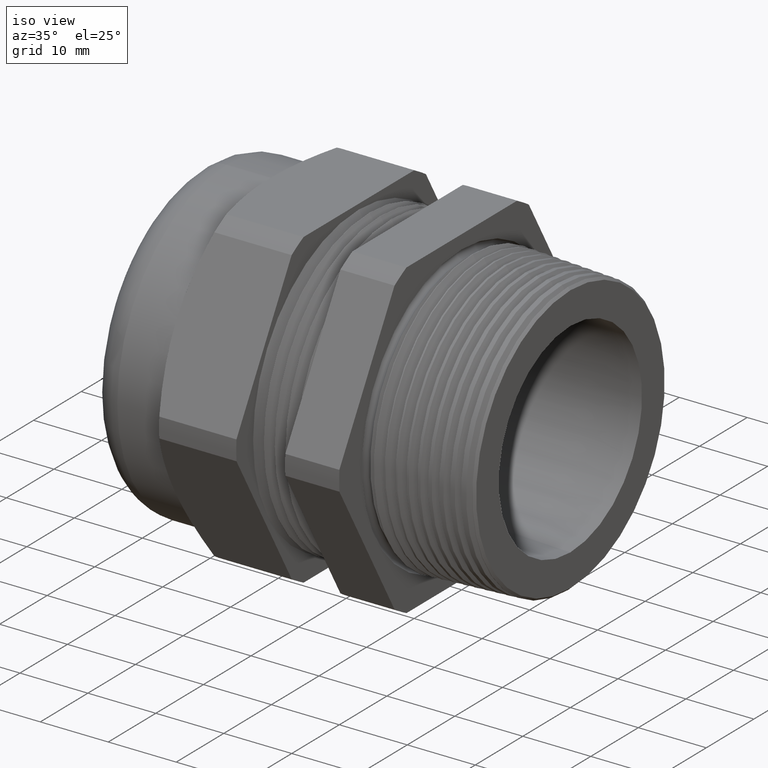
[diagram: clean part render]
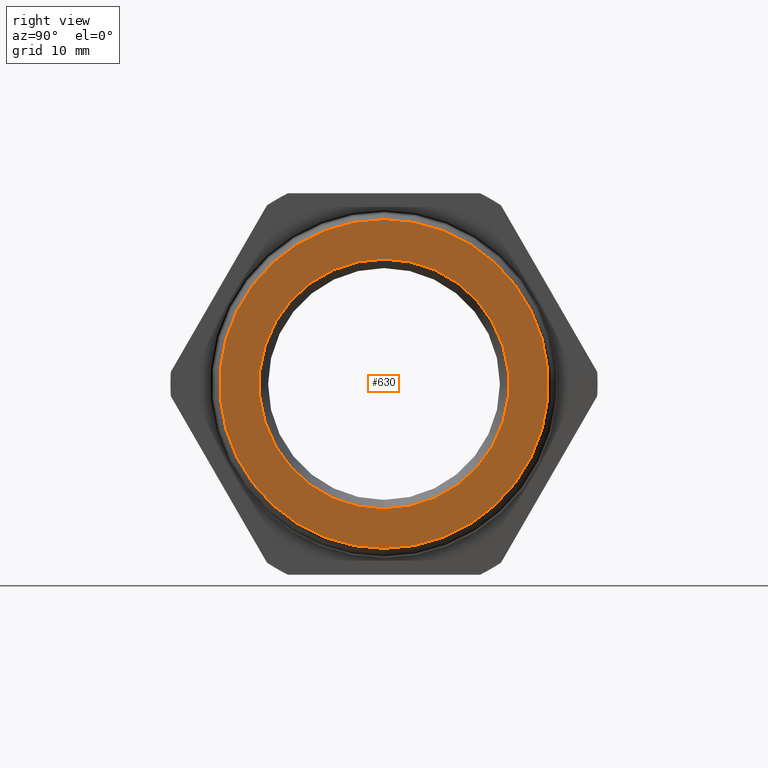
[diagram: tour spotlight — one face highlighted and labeled with its STEP entity id]
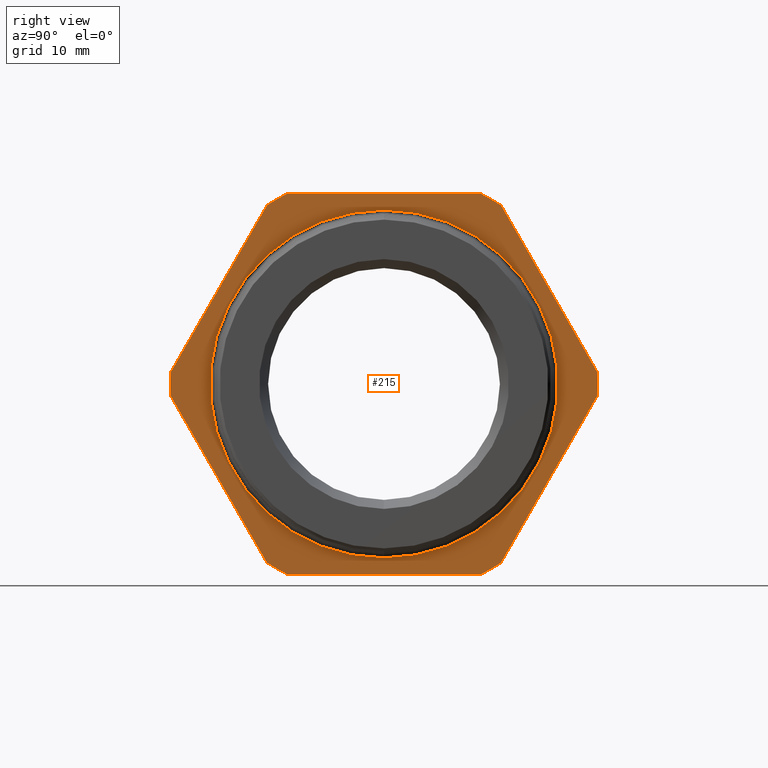
[diagram: tour spotlight — one face highlighted and labeled with its STEP entity id]
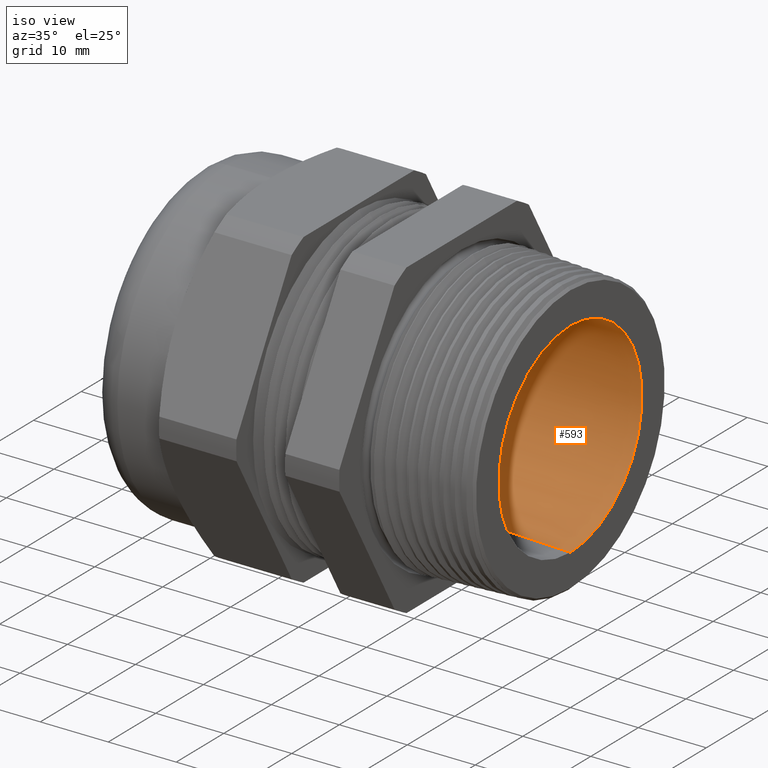
[diagram: tour spotlight — one face highlighted and labeled with its STEP entity id]
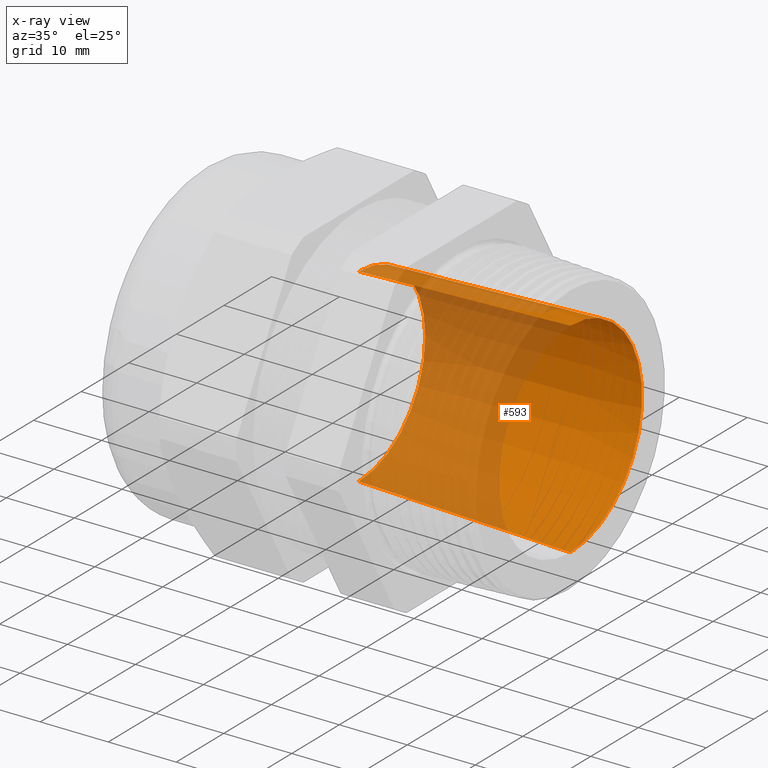
[diagram: x-ray of the same camera — body ghosted, this tour face saturated]
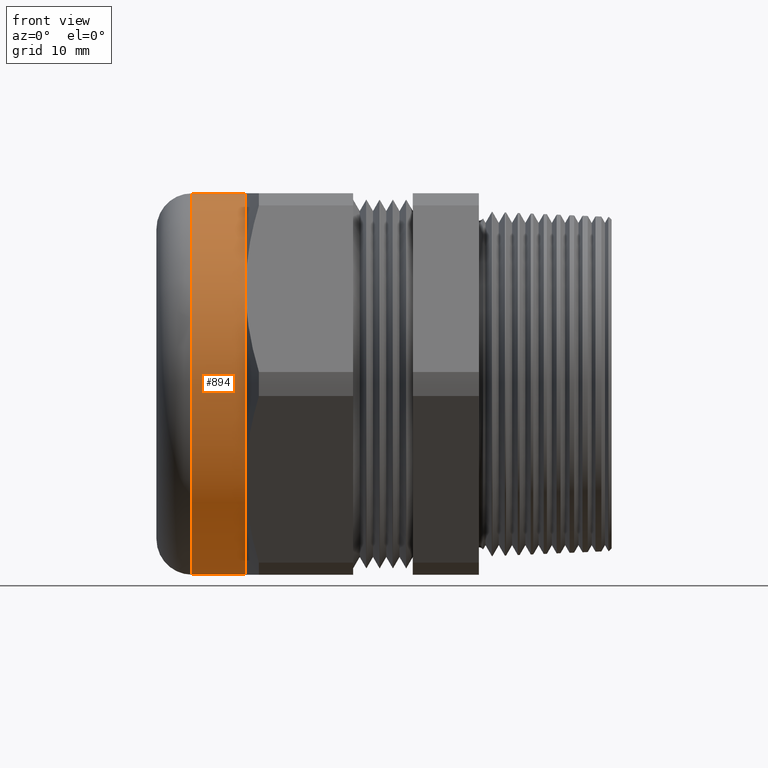
[diagram: tour spotlight — one face highlighted and labeled with its STEP entity id]
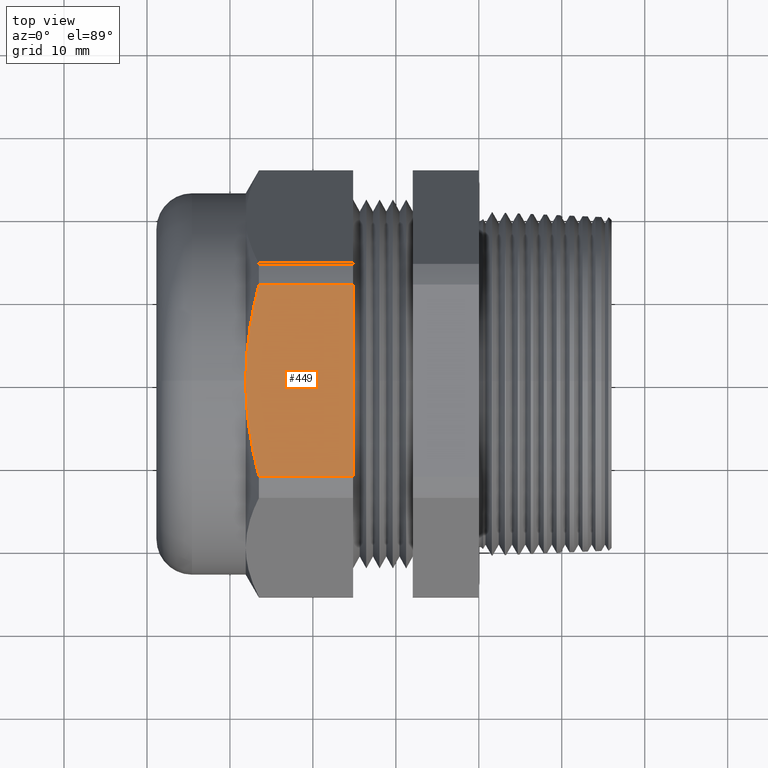
[diagram: tour spotlight — one face highlighted and labeled with its STEP entity id]
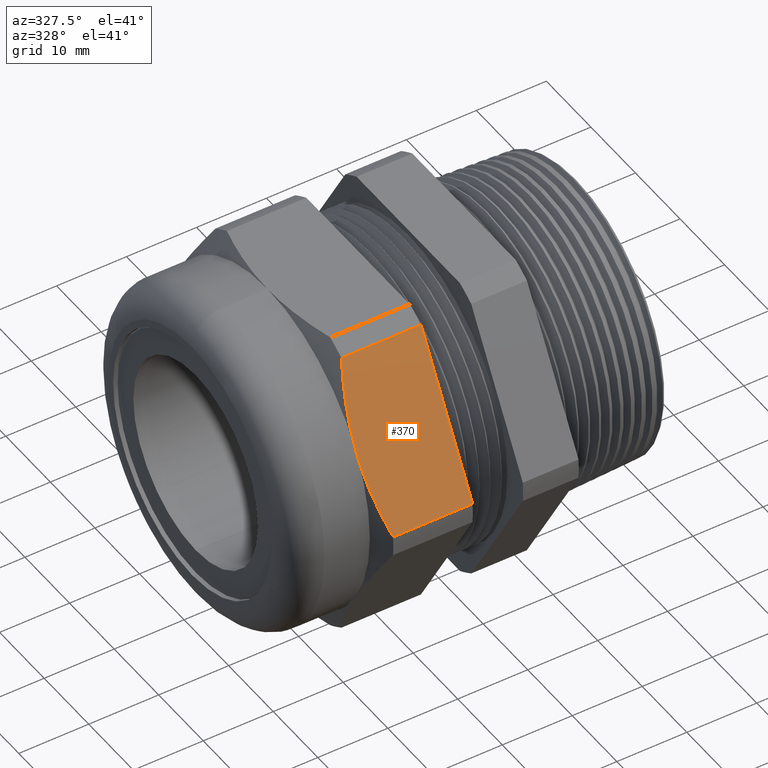
[diagram: tour spotlight — one face highlighted and labeled with its STEP entity id]
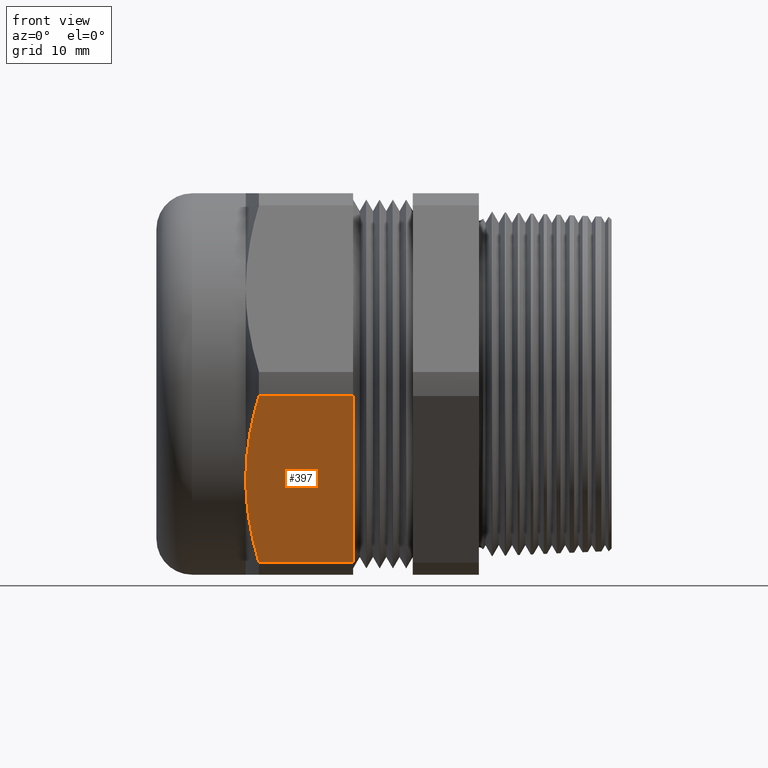
[diagram: tour spotlight — one face highlighted and labeled with its STEP entity id]
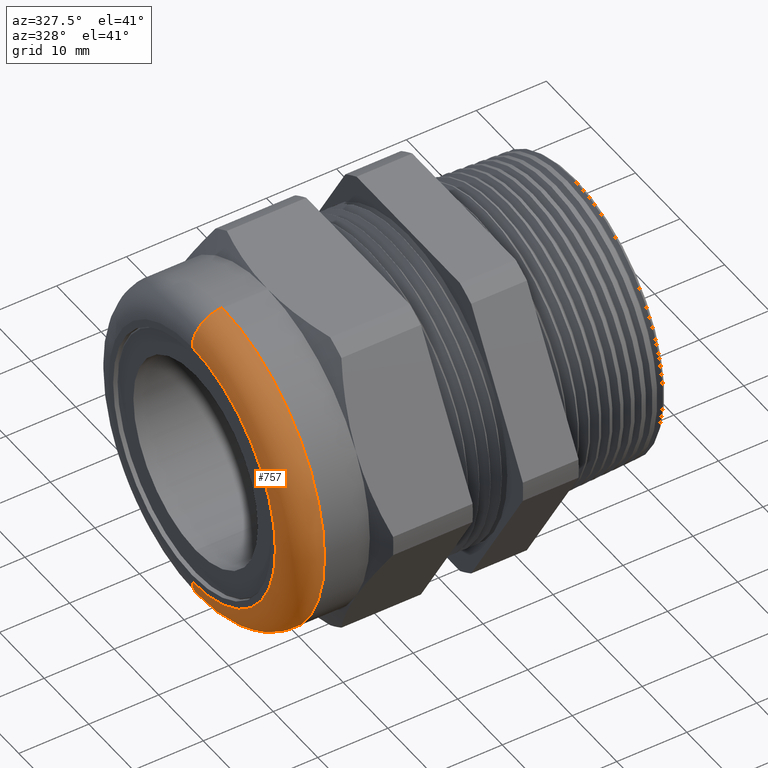
[diagram: tour spotlight — one face highlighted and labeled with its STEP entity id]
A machine part: a face-by-face anatomy tour. The part has 150 B-rep faces; the first image is the clean iso view, then the 8 largest visible faces are spotlighted one at a time (largest first), each with its STEP entity span.

Face 1 — right view, entity #630. In plain terms, the highlighted planar face has unit normal (-1, 0, 0).
Definition (entity closure, byte-faithful):
#37 = VERTEX_POINT ( 'NONE', #1516 ) ;
#39 = EDGE_CURVE ( 'NONE', #40, #37, #1515, .T. ) ;
#40 = VERTEX_POINT ( 'NONE', #1467 ) ;
#584 = EDGE_LOOP ( 'NONE', ( #590, #625 ) ) ;
#585 = EDGE_CURVE ( 'NONE', #37, #40, #2607, .T. ) ;
#587 = ORIENTED_EDGE ( 'NONE', *, *, #1354, .T. ) ;
#590 = ORIENTED_EDGE ( 'NONE', *, *, #39, .T. ) ;
#597 = EDGE_LOOP ( 'NONE', ( #619, #587 ) ) ;
#619 = ORIENTED_EDGE ( 'NONE', *, *, #641, .T. ) ;
#625 = ORIENTED_EDGE ( 'NONE', *, *, #585, .T. ) ;
#630 = ADVANCED_FACE ( 'NONE', ( #2554, #2553 ), #2552, .F. ) ;
#641 = EDGE_CURVE ( 'NONE', #1356, #1355, #2589, .T. ) ;
#1354 = EDGE_CURVE ( 'NONE', #1355, #1356, #4033, .T. ) ;
#1355 = VERTEX_POINT ( 'NONE', #4028 ) ;
#1356 = VERTEX_POINT ( 'NONE', #4027 ) ;
#1467 = CARTESIAN_POINT ( 'NONE',  ( 0.6299999999999997800, 0.0000000000000000000, -0.5928215935892565700 ) ) ;
#1511 = DIRECTION ( 'NONE',  ( 0.0000000000000000000, 0.0000000000000000000, 1.000000000000000000 ) ) ;
#1512 = DIRECTION ( 'NONE',  ( -1.000000000000000000, 0.0000000000000000000, 0.0000000000000000000 ) ) ;
#1513 = CARTESIAN_POINT ( 'NONE',  ( 0.6299999999999997800, 0.0000000000000000000, 0.0000000000000000000 ) ) ;
#1514 = AXIS2_PLACEMENT_3D ( 'NONE', #1513, #1512, #1511 ) ;
#1515 = CIRCLE ( 'NONE', #1514, 0.5928215935892565700 ) ;
#1516 = CARTESIAN_POINT ( 'NONE',  ( 0.6299999999999997800, 7.259970670545161900E-017, 0.5928215935892565700 ) ) ;
#2552 = PLANE ( 'NONE',  #2594 ) ;
#2553 = FACE_BOUND ( 'NONE', #584, .T. ) ;
#2554 = FACE_OUTER_BOUND ( 'NONE', #597, .T. ) ;
#2582 = CARTESIAN_POINT ( 'NONE',  ( 0.6299999999999997800, 0.0000000000000000000, 0.0000000000000000000 ) ) ;
#2583 = AXIS2_PLACEMENT_3D ( 'NONE', #2582, #2654, #2653 ) ;
#2589 = CIRCLE ( 'NONE', #2583, 0.7799936059676371200 ) ;
#2591 = DIRECTION ( 'NONE',  ( 0.0000000000000000000, 0.0000000000000000000, 1.000000000000000000 ) ) ;
#2592 = DIRECTION ( 'NONE',  ( -1.000000000000000000, 0.0000000000000000000, 0.0000000000000000000 ) ) ;
#2593 = CARTESIAN_POINT ( 'NONE',  ( 0.6299999999999997800, 0.7924936059676371800, 0.0000000000000000000 ) ) ;
#2594 = AXIS2_PLACEMENT_3D ( 'NONE', #2593, #2592, #2591 ) ;
#2604 = CARTESIAN_POINT ( 'NONE',  ( 0.6299999999999997800, 0.0000000000000000000, 0.0000000000000000000 ) ) ;
#2606 = AXIS2_PLACEMENT_3D ( 'NONE', #2604, #2632, #2631 ) ;
#2607 = CIRCLE ( 'NONE', #2606, 0.5928215935892565700 ) ;
#2631 = DIRECTION ( 'NONE',  ( 0.0000000000000000000, 0.0000000000000000000, 1.000000000000000000 ) ) ;
#2632 = DIRECTION ( 'NONE',  ( -1.000000000000000000, 0.0000000000000000000, 0.0000000000000000000 ) ) ;
#2653 = DIRECTION ( 'NONE',  ( 0.0000000000000000000, 0.0000000000000000000, 1.000000000000000000 ) ) ;
#2654 = DIRECTION ( 'NONE',  ( 1.000000000000000000, 0.0000000000000000000, 0.0000000000000000000 ) ) ;
#4027 = CARTESIAN_POINT ( 'NONE',  ( 0.6299999999999997800, 0.0000000000000000000, 0.7799936059676371200 ) ) ;
#4028 = CARTESIAN_POINT ( 'NONE',  ( 0.6299999999999997800, 9.632201549719941800E-017, -0.7799936059676371200 ) ) ;
#4029 = DIRECTION ( 'NONE',  ( 0.0000000000000000000, 0.0000000000000000000, 1.000000000000000000 ) ) ;
#4030 = DIRECTION ( 'NONE',  ( 1.000000000000000000, 0.0000000000000000000, 0.0000000000000000000 ) ) ;
#4031 = CARTESIAN_POINT ( 'NONE',  ( 0.6299999999999997800, 0.0000000000000000000, 0.0000000000000000000 ) ) ;
#4032 = AXIS2_PLACEMENT_3D ( 'NONE', #4031, #4030, #4029 ) ;
#4033 = CIRCLE ( 'NONE', #4032, 0.7799936059676371200 ) ;

Face 2 — right view, entity #215. In plain terms, the highlighted planar face has unit normal (-1, 0, 0).
Definition (entity closure, byte-faithful):
#96 = ORIENTED_EDGE ( 'NONE', *, *, #97, .F. ) ;
#97 = EDGE_CURVE ( 'NONE', #98, #222, #1663, .T. ) ;
#98 = VERTEX_POINT ( 'NONE', #1621 ) ;
#100 = EDGE_LOOP ( 'NONE', ( #147, #219, #245, #283, #232, #255, #251, #152, #216, #96, #228, #270 ) ) ;
#147 = ORIENTED_EDGE ( 'NONE', *, *, #221, .T. ) ;
#148 = VERTEX_POINT ( 'NONE', #1637 ) ;
#150 = EDGE_CURVE ( 'NONE', #250, #151, #1636, .T. ) ;
#151 = VERTEX_POINT ( 'NONE', #1632 ) ;
#152 = ORIENTED_EDGE ( 'NONE', *, *, #153, .F. ) ;
#153 = EDGE_CURVE ( 'NONE', #154, #151, #1631, .T. ) ;
#154 = VERTEX_POINT ( 'NONE', #1626 ) ;
#215 = ADVANCED_FACE ( 'NONE', ( #1828, #1827 ), #1826, .F. ) ;
#216 = ORIENTED_EDGE ( 'NONE', *, *, #217, .T. ) ;
#217 = EDGE_CURVE ( 'NONE', #154, #222, #1821, .T. ) ;
#218 = VERTEX_POINT ( 'NONE', #1817 ) ;
#219 = ORIENTED_EDGE ( 'NONE', *, *, #220, .F. ) ;
#220 = EDGE_CURVE ( 'NONE', #244, #218, #1816, .T. ) ;
#221 = EDGE_CURVE ( 'NONE', #148, #218, #1811, .T. ) ;
#222 = VERTEX_POINT ( 'NONE', #1807 ) ;
#228 = ORIENTED_EDGE ( 'NONE', *, *, #259, .T. ) ;
#232 = ORIENTED_EDGE ( 'NONE', *, *, #233, .T. ) ;
#233 = EDGE_CURVE ( 'NONE', #285, #234, #1911, .T. ) ;
#234 = VERTEX_POINT ( 'NONE', #1907 ) ;
#244 = VERTEX_POINT ( 'NONE', #1896 ) ;
#245 = ORIENTED_EDGE ( 'NONE', *, *, #246, .T. ) ;
#246 = EDGE_CURVE ( 'NONE', #244, #247, #1895, .T. ) ;
#247 = VERTEX_POINT ( 'NONE', #1891 ) ;
#250 = VERTEX_POINT ( 'NONE', #1885 ) ;
#251 = ORIENTED_EDGE ( 'NONE', *, *, #150, .T. ) ;
#255 = ORIENTED_EDGE ( 'NONE', *, *, #256, .F. ) ;
#256 = EDGE_CURVE ( 'NONE', #250, #234, #1877, .T. ) ;
#259 = EDGE_CURVE ( 'NONE', #98, #290, #1868, .T. ) ;
#270 = ORIENTED_EDGE ( 'NONE', *, *, #271, .F. ) ;
#271 = EDGE_CURVE ( 'NONE', #148, #290, #1997, .T. ) ;
#277 = ORIENTED_EDGE ( 'NONE', *, *, #1038, .F. ) ;
#279 = ORIENTED_EDGE ( 'NONE', *, *, #280, .F. ) ;
#280 = EDGE_CURVE ( 'NONE', #1039, #1036, #2040, .T. ) ;
#283 = ORIENTED_EDGE ( 'NONE', *, *, #284, .F. ) ;
#284 = EDGE_CURVE ( 'NONE', #285, #247, #2031, .T. ) ;
#285 = VERTEX_POINT ( 'NONE', #2026 ) ;
#290 = VERTEX_POINT ( 'NONE', #1957 ) ;
#297 = EDGE_LOOP ( 'NONE', ( #279, #277 ) ) ;
#1036 = VERTEX_POINT ( 'NONE', #2860 ) ;
#1038 = EDGE_CURVE ( 'NONE', #1036, #1039, #2859, .T. ) ;
#1039 = VERTEX_POINT ( 'NONE', #2854 ) ;
#1621 = CARTESIAN_POINT ( 'NONE',  ( 0.0000000000000000000, -0.5555206745710920000, 0.8478099669879323200 ) ) ;
#1622 = DIRECTION ( 'NONE',  ( 0.0000000000000000000, 0.0000000000000000000, 1.000000000000000000 ) ) ;
#1623 = DIRECTION ( 'NONE',  ( -1.000000000000000000, 0.0000000000000000000, 0.0000000000000000000 ) ) ;
#1624 = CARTESIAN_POINT ( 'NONE',  ( 0.0000000000000000000, 0.0000000000000000000, 0.0000000000000000000 ) ) ;
#1625 = AXIS2_PLACEMENT_3D ( 'NONE', #1624, #1623, #1622 ) ;
#1626 = CARTESIAN_POINT ( 'NONE',  ( 0.0000000000000000000, 0.4564646317076493900, 0.9050000000000001400 ) ) ;
#1627 = DIRECTION ( 'NONE',  ( 0.0000000000000000000, 0.0000000000000000000, 1.000000000000000000 ) ) ;
#1628 = DIRECTION ( 'NONE',  ( -1.000000000000000000, 0.0000000000000000000, 0.0000000000000000000 ) ) ;
#1629 = CARTESIAN_POINT ( 'NONE',  ( 0.0000000000000000000, 0.0000000000000000000, 0.0000000000000000000 ) ) ;
#1630 = AXIS2_PLACEMENT_3D ( 'NONE', #1629, #1628, #1627 ) ;
#1631 = CIRCLE ( 'NONE', #1630, 1.013600000000000100 ) ;
#1632 = CARTESIAN_POINT ( 'NONE',  ( 0.0000000000000000000, 0.5555206745710923300, 0.8478099669879322100 ) ) ;
#1633 = DIRECTION ( 'NONE',  ( 0.0000000000000000000, -0.4999999999999998900, 0.8660254037844386000 ) ) ;
#1634 = VECTOR ( 'NONE', #1633, 39.37007874015748900 ) ;
#1635 = CARTESIAN_POINT ( 'NONE',  ( 0.0000000000000000000, 1.011985306278741600, 0.05719003301206784100 ) ) ;
#1636 = LINE ( 'NONE', #1635, #1634 ) ;
#1637 = CARTESIAN_POINT ( 'NONE',  ( 0.0000000000000000000, -1.011985306278741800, -0.05719003301206832000 ) ) ;
#1663 = CIRCLE ( 'NONE', #1625, 1.013600000000000100 ) ;
#1807 = CARTESIAN_POINT ( 'NONE',  ( 0.0000000000000000000, -0.4564646317076495000, 0.9050000000000000300 ) ) ;
#1808 = DIRECTION ( 'NONE',  ( 0.0000000000000000000, 0.4999999999999998300, -0.8660254037844386000 ) ) ;
#1809 = VECTOR ( 'NONE', #1808, 39.37007874015748900 ) ;
#1810 = CARTESIAN_POINT ( 'NONE',  ( 0.0000000000000000000, -1.011985306278741600, -0.05719003301206825000 ) ) ;
#1811 = LINE ( 'NONE', #1810, #1809 ) ;
#1812 = DIRECTION ( 'NONE',  ( 0.0000000000000000000, 0.0000000000000000000, 1.000000000000000000 ) ) ;
#1813 = DIRECTION ( 'NONE',  ( -1.000000000000000000, 0.0000000000000000000, 0.0000000000000000000 ) ) ;
#1814 = CARTESIAN_POINT ( 'NONE',  ( 0.0000000000000000000, 0.0000000000000000000, 0.0000000000000000000 ) ) ;
#1815 = AXIS2_PLACEMENT_3D ( 'NONE', #1814, #1813, #1812 ) ;
#1816 = CIRCLE ( 'NONE', #1815, 1.013600000000000100 ) ;
#1817 = CARTESIAN_POINT ( 'NONE',  ( 0.0000000000000000000, -0.5555206745710928900, -0.8478099669879317600 ) ) ;
#1818 = DIRECTION ( 'NONE',  ( 0.0000000000000000000, -1.000000000000000000, 0.0000000000000000000 ) ) ;
#1819 = VECTOR ( 'NONE', #1818, 39.37007874015748100 ) ;
#1820 = CARTESIAN_POINT ( 'NONE',  ( 0.0000000000000000000, 0.4564646317076495000, 0.9050000000000000300 ) ) ;
#1821 = LINE ( 'NONE', #1820, #1819 ) ;
#1822 = DIRECTION ( 'NONE',  ( 0.0000000000000000000, 0.0000000000000000000, 1.000000000000000000 ) ) ;
#1823 = DIRECTION ( 'NONE',  ( -1.000000000000000000, 0.0000000000000000000, 0.0000000000000000000 ) ) ;
#1824 = CARTESIAN_POINT ( 'NONE',  ( 0.0000000000000000000, 1.013600000000000100, 0.0000000000000000000 ) ) ;
#1825 = AXIS2_PLACEMENT_3D ( 'NONE', #1824, #1823, #1822 ) ;
#1826 = PLANE ( 'NONE',  #1825 ) ;
#1827 = FACE_BOUND ( 'NONE', #297, .T. ) ;
#1828 = FACE_OUTER_BOUND ( 'NONE', #100, .T. ) ;
#1865 = DIRECTION ( 'NONE',  ( 0.0000000000000000000, -0.4999999999999998900, -0.8660254037844386000 ) ) ;
#1866 = VECTOR ( 'NONE', #1865, 39.37007874015748900 ) ;
#1867 = CARTESIAN_POINT ( 'NONE',  ( 0.0000000000000000000, -0.5555206745710921100, 0.8478099669879322100 ) ) ;
#1868 = LINE ( 'NONE', #1867, #1866 ) ;
#1874 = DIRECTION ( 'NONE',  ( 0.0000000000000000000, 0.0000000000000000000, 1.000000000000000000 ) ) ;
#1875 = DIRECTION ( 'NONE',  ( -1.000000000000000000, 0.0000000000000000000, 0.0000000000000000000 ) ) ;
#1876 = AXIS2_PLACEMENT_3D ( 'NONE', #1882, #1875, #1874 ) ;
#1877 = CIRCLE ( 'NONE', #1876, 1.013600000000000100 ) ;
#1882 = CARTESIAN_POINT ( 'NONE',  ( 0.0000000000000000000, 0.0000000000000000000, 0.0000000000000000000 ) ) ;
#1885 = CARTESIAN_POINT ( 'NONE',  ( 0.0000000000000000000, 1.011985306278741600, 0.05719003301206775800 ) ) ;
#1891 = CARTESIAN_POINT ( 'NONE',  ( 0.0000000000000000000, 0.4564646317076495000, -0.9050000000000000300 ) ) ;
#1892 = DIRECTION ( 'NONE',  ( 0.0000000000000000000, 1.000000000000000000, 0.0000000000000000000 ) ) ;
#1893 = VECTOR ( 'NONE', #1892, 39.37007874015748100 ) ;
#1894 = CARTESIAN_POINT ( 'NONE',  ( 0.0000000000000000000, -0.4564646317076495000, -0.9050000000000000300 ) ) ;
#1895 = LINE ( 'NONE', #1894, #1893 ) ;
#1896 = CARTESIAN_POINT ( 'NONE',  ( 0.0000000000000000000, -0.4564646317076499500, -0.9049999999999998000 ) ) ;
#1907 = CARTESIAN_POINT ( 'NONE',  ( 0.0000000000000000000, 1.011985306278741600, -0.05719003301206784100 ) ) ;
#1908 = DIRECTION ( 'NONE',  ( 0.0000000000000000000, 0.4999999999999998900, 0.8660254037844386000 ) ) ;
#1909 = VECTOR ( 'NONE', #1908, 39.37007874015748900 ) ;
#1910 = CARTESIAN_POINT ( 'NONE',  ( 0.0000000000000000000, 0.5555206745710923300, -0.8478099669879322100 ) ) ;
#1911 = LINE ( 'NONE', #1910, #1909 ) ;
#1957 = CARTESIAN_POINT ( 'NONE',  ( 0.0000000000000000000, -1.011985306278742100, 0.05719003301206764700 ) ) ;
#1993 = DIRECTION ( 'NONE',  ( 0.0000000000000000000, 0.0000000000000000000, 1.000000000000000000 ) ) ;
#1994 = DIRECTION ( 'NONE',  ( -1.000000000000000000, 0.0000000000000000000, 0.0000000000000000000 ) ) ;
#1995 = CARTESIAN_POINT ( 'NONE',  ( 0.0000000000000000000, 0.0000000000000000000, 0.0000000000000000000 ) ) ;
#1996 = AXIS2_PLACEMENT_3D ( 'NONE', #1995, #1994, #1993 ) ;
#1997 = CIRCLE ( 'NONE', #1996, 1.013600000000000100 ) ;
#2026 = CARTESIAN_POINT ( 'NONE',  ( 0.0000000000000000000, 0.5555206745710923300, -0.8478099669879322100 ) ) ;
#2027 = DIRECTION ( 'NONE',  ( 0.0000000000000000000, 0.0000000000000000000, 1.000000000000000000 ) ) ;
#2028 = DIRECTION ( 'NONE',  ( -1.000000000000000000, 0.0000000000000000000, 0.0000000000000000000 ) ) ;
#2029 = CARTESIAN_POINT ( 'NONE',  ( 0.0000000000000000000, 0.0000000000000000000, 0.0000000000000000000 ) ) ;
#2030 = AXIS2_PLACEMENT_3D ( 'NONE', #2029, #2028, #2027 ) ;
#2031 = CIRCLE ( 'NONE', #2030, 1.013600000000000100 ) ;
#2037 = DIRECTION ( 'NONE',  ( 0.0000000000000000000, 0.0000000000000000000, 1.000000000000000000 ) ) ;
#2038 = DIRECTION ( 'NONE',  ( 1.000000000000000000, 0.0000000000000000000, 0.0000000000000000000 ) ) ;
#2039 = AXIS2_PLACEMENT_3D ( 'NONE', #2045, #2038, #2037 ) ;
#2040 = CIRCLE ( 'NONE', #2039, 0.8249999999999998400 ) ;
#2045 = CARTESIAN_POINT ( 'NONE',  ( 0.0000000000000000000, 0.0000000000000000000, 0.0000000000000000000 ) ) ;
#2854 = CARTESIAN_POINT ( 'NONE',  ( 0.0000000000000000000, 0.0000000000000000000, -0.8249999999999998400 ) ) ;
#2855 = DIRECTION ( 'NONE',  ( 0.0000000000000000000, 0.0000000000000000000, 1.000000000000000000 ) ) ;
#2856 = DIRECTION ( 'NONE',  ( 1.000000000000000000, 0.0000000000000000000, 0.0000000000000000000 ) ) ;
#2857 = CARTESIAN_POINT ( 'NONE',  ( 0.0000000000000000000, 0.0000000000000000000, 0.0000000000000000000 ) ) ;
#2858 = AXIS2_PLACEMENT_3D ( 'NONE', #2857, #2856, #2855 ) ;
#2859 = CIRCLE ( 'NONE', #2858, 0.8249999999999998400 ) ;
#2860 = CARTESIAN_POINT ( 'NONE',  ( 0.0000000000000000000, 1.010333609296566100E-016, 0.8249999999999998400 ) ) ;

Face 3 — iso view, entity #593. An x-ray twin of the same camera follows (body ghosted, this face saturated) — the face is partly hidden behind the body. In plain terms, the highlighted conical surface has half-angle 2 deg.
Definition (entity closure, byte-faithful):
#30 = EDGE_CURVE ( 'NONE', #74, #40, #1489, .T. ) ;
#36 = EDGE_CURVE ( 'NONE', #75, #37, #1479, .T. ) ;
#37 = VERTEX_POINT ( 'NONE', #1516 ) ;
#40 = VERTEX_POINT ( 'NONE', #1467 ) ;
#74 = VERTEX_POINT ( 'NONE', #1588 ) ;
#75 = VERTEX_POINT ( 'NONE', #1587 ) ;
#583 = ORIENTED_EDGE ( 'NONE', *, *, #623, .T. ) ;
#585 = EDGE_CURVE ( 'NONE', #37, #40, #2607, .T. ) ;
#593 = ADVANCED_FACE ( 'NONE', ( #2669 ), #2668, .F. ) ;
#598 = EDGE_LOOP ( 'NONE', ( #600, #583, #624, #635 ) ) ;
#600 = ORIENTED_EDGE ( 'NONE', *, *, #36, .F. ) ;
#623 = EDGE_CURVE ( 'NONE', #75, #74, #2700, .T. ) ;
#624 = ORIENTED_EDGE ( 'NONE', *, *, #30, .T. ) ;
#635 = ORIENTED_EDGE ( 'NONE', *, *, #585, .F. ) ;
#1467 = CARTESIAN_POINT ( 'NONE',  ( 0.6299999999999997800, 0.0000000000000000000, -0.5928215935892565700 ) ) ;
#1479 = LINE ( 'NONE', #1519, #1518 ) ;
#1486 = DIRECTION ( 'NONE',  ( 0.9993908270190957600, 0.0000000000000000000, -0.03489949670250164900 ) ) ;
#1487 = VECTOR ( 'NONE', #1486, 39.37007874015748900 ) ;
#1488 = CARTESIAN_POINT ( 'NONE',  ( -0.5962500000000000600, 0.0000000000000000000, -0.5500000000000000400 ) ) ;
#1489 = LINE ( 'NONE', #1488, #1487 ) ;
#1516 = CARTESIAN_POINT ( 'NONE',  ( 0.6299999999999997800, 7.259970670545161900E-017, 0.5928215935892565700 ) ) ;
#1517 = DIRECTION ( 'NONE',  ( 0.9993908270190957600, 4.273955692857225000E-018, 0.03489949670250164900 ) ) ;
#1518 = VECTOR ( 'NONE', #1517, 39.37007874015748900 ) ;
#1519 = CARTESIAN_POINT ( 'NONE',  ( -0.5962500000000000600, 6.735557395310443700E-017, 0.5500000000000000400 ) ) ;
#1587 = CARTESIAN_POINT ( 'NONE',  ( -0.5962500000000000600, 6.997764032927803500E-017, 0.5500000000000000400 ) ) ;
#1588 = CARTESIAN_POINT ( 'NONE',  ( -0.5962500000000000600, 0.0000000000000000000, -0.5500000000000000400 ) ) ;
#2537 = CARTESIAN_POINT ( 'NONE',  ( -0.5962500000000000600, 0.0000000000000000000, 0.0000000000000000000 ) ) ;
#2604 = CARTESIAN_POINT ( 'NONE',  ( 0.6299999999999997800, 0.0000000000000000000, 0.0000000000000000000 ) ) ;
#2606 = AXIS2_PLACEMENT_3D ( 'NONE', #2604, #2632, #2631 ) ;
#2607 = CIRCLE ( 'NONE', #2606, 0.5928215935892565700 ) ;
#2631 = DIRECTION ( 'NONE',  ( 0.0000000000000000000, 0.0000000000000000000, 1.000000000000000000 ) ) ;
#2632 = DIRECTION ( 'NONE',  ( -1.000000000000000000, 0.0000000000000000000, 0.0000000000000000000 ) ) ;
#2665 = DIRECTION ( 'NONE',  ( 0.0000000000000000000, 0.0000000000000000000, 1.000000000000000000 ) ) ;
#2666 = DIRECTION ( 'NONE',  ( -1.000000000000000000, 0.0000000000000000000, 0.0000000000000000000 ) ) ;
#2667 = AXIS2_PLACEMENT_3D ( 'NONE', #2699, #2666, #2665 ) ;
#2668 = CONICAL_SURFACE ( 'NONE', #2692, 0.5500000000000000400, 0.03490658503988727100 ) ;
#2669 = FACE_OUTER_BOUND ( 'NONE', #598, .T. ) ;
#2690 = DIRECTION ( 'NONE',  ( 0.0000000000000000000, 0.0000000000000000000, -1.000000000000000000 ) ) ;
#2691 = DIRECTION ( 'NONE',  ( 1.000000000000000000, 0.0000000000000000000, 0.0000000000000000000 ) ) ;
#2692 = AXIS2_PLACEMENT_3D ( 'NONE', #2537, #2691, #2690 ) ;
#2699 = CARTESIAN_POINT ( 'NONE',  ( -0.5962500000000000600, 0.0000000000000000000, 0.0000000000000000000 ) ) ;
#2700 = CIRCLE ( 'NONE', #2667, 0.5500000000000000400 ) ;

Face 4 — front view, entity #894. In plain terms, the highlighted cylindrical surface (partial cylindrical patch) has radius 22.987 mm, axis along (-1, 0, 0).
Definition (entity closure, byte-faithful):
#13 = VERTEX_POINT ( 'NONE', #1445 ) ;
#15 = EDGE_CURVE ( 'NONE', #13, #1387, #1444, .T. ) ;
#49 = EDGE_CURVE ( 'NONE', #50, #1327, #1538, .T. ) ;
#50 = VERTEX_POINT ( 'NONE', #1534 ) ;
#325 = VERTEX_POINT ( 'NONE', #2192 ) ;
#489 = VERTEX_POINT ( 'NONE', #2308 ) ;
#894 = ADVANCED_FACE ( 'NONE', ( #3668 ), #3667, .T. ) ;
#895 = EDGE_LOOP ( 'NONE', ( #896, #897, #899, #920, #922, #932 ) ) ;
#896 = ORIENTED_EDGE ( 'NONE', *, *, #15, .F. ) ;
#897 = ORIENTED_EDGE ( 'NONE', *, *, #898, .T. ) ;
#898 = EDGE_CURVE ( 'NONE', #13, #489, #3721, .T. ) ;
#899 = ORIENTED_EDGE ( 'NONE', *, *, #900, .T. ) ;
#900 = EDGE_CURVE ( 'NONE', #489, #325, #3717, .T. ) ;
#920 = ORIENTED_EDGE ( 'NONE', *, *, #921, .T. ) ;
#921 = EDGE_CURVE ( 'NONE', #325, #50, #2900, .T. ) ;
#922 = ORIENTED_EDGE ( 'NONE', *, *, #49, .T. ) ;
#932 = ORIENTED_EDGE ( 'NONE', *, *, #933, .T. ) ;
#933 = EDGE_CURVE ( 'NONE', #1327, #1387, #2883, .T. ) ;
#1327 = VERTEX_POINT ( 'NONE', #4043 ) ;
#1387 = VERTEX_POINT ( 'NONE', #3728 ) ;
#1436 = DIRECTION ( 'NONE',  ( -1.000000000000000000, 0.0000000000000000000, 0.0000000000000000000 ) ) ;
#1437 = VECTOR ( 'NONE', #1436, 39.37007874015748100 ) ;
#1443 = CARTESIAN_POINT ( 'NONE',  ( -0.7238591030180623300, 1.108305353228354500E-016, -0.9049999999999999200 ) ) ;
#1444 = LINE ( 'NONE', #1443, #1437 ) ;
#1445 = CARTESIAN_POINT ( 'NONE',  ( -1.106250000000000200, 0.0000000000000000000, -0.9050000000000000300 ) ) ;
#1534 = CARTESIAN_POINT ( 'NONE',  ( -1.106250000000000200, 0.0000000000000000000, 0.9050000000000000300 ) ) ;
#1535 = DIRECTION ( 'NONE',  ( -1.000000000000000000, 0.0000000000000000000, 0.0000000000000000000 ) ) ;
#1536 = VECTOR ( 'NONE', #1535, 39.37007874015748100 ) ;
#1537 = CARTESIAN_POINT ( 'NONE',  ( -0.7238591030180623300, 0.0000000000000000000, 0.9049999999999999200 ) ) ;
#1538 = LINE ( 'NONE', #1537, #1536 ) ;
#2192 = CARTESIAN_POINT ( 'NONE',  ( -1.106250000000000200, -0.7837529904249172000, 0.4524999999999997400 ) ) ;
#2308 = CARTESIAN_POINT ( 'NONE',  ( -1.106250000000000200, -0.7837529904249169700, -0.4525000000000000100 ) ) ;
#2879 = DIRECTION ( 'NONE',  ( 0.0000000000000000000, 0.0000000000000000000, -1.000000000000000000 ) ) ;
#2880 = DIRECTION ( 'NONE',  ( 1.000000000000000000, 0.0000000000000000000, 0.0000000000000000000 ) ) ;
#2881 = CARTESIAN_POINT ( 'NONE',  ( -1.361399999999999900, 0.0000000000000000000, 0.0000000000000000000 ) ) ;
#2882 = AXIS2_PLACEMENT_3D ( 'NONE', #2881, #2880, #2879 ) ;
#2883 = CIRCLE ( 'NONE', #2882, 0.9049999999999999200 ) ;
#2896 = DIRECTION ( 'NONE',  ( 0.0000000000000000000, 0.0000000000000000000, 1.000000000000000000 ) ) ;
#2897 = DIRECTION ( 'NONE',  ( -1.000000000000000000, 0.0000000000000000000, 0.0000000000000000000 ) ) ;
#2898 = CARTESIAN_POINT ( 'NONE',  ( -1.106250000000000200, 0.0000000000000000000, 0.0000000000000000000 ) ) ;
#2899 = AXIS2_PLACEMENT_3D ( 'NONE', #2898, #2897, #2896 ) ;
#2900 = CIRCLE ( 'NONE', #2899, 0.9049999999999999200 ) ;
#3667 = CYLINDRICAL_SURFACE ( 'NONE', #3726, 0.9049999999999999200 ) ;
#3668 = FACE_OUTER_BOUND ( 'NONE', #895, .T. ) ;
#3713 = DIRECTION ( 'NONE',  ( 0.0000000000000000000, 0.0000000000000000000, 1.000000000000000000 ) ) ;
#3714 = DIRECTION ( 'NONE',  ( -1.000000000000000000, 0.0000000000000000000, 0.0000000000000000000 ) ) ;
#3715 = CARTESIAN_POINT ( 'NONE',  ( -1.106250000000000200, 0.0000000000000000000, 0.0000000000000000000 ) ) ;
#3716 = AXIS2_PLACEMENT_3D ( 'NONE', #3715, #3714, #3713 ) ;
#3717 = CIRCLE ( 'NONE', #3716, 0.9049999999999999200 ) ;
#3718 = DIRECTION ( 'NONE',  ( 0.0000000000000000000, 0.0000000000000000000, 1.000000000000000000 ) ) ;
#3719 = DIRECTION ( 'NONE',  ( -1.000000000000000000, 0.0000000000000000000, 0.0000000000000000000 ) ) ;
#3720 = AXIS2_PLACEMENT_3D ( 'NONE', #3725, #3719, #3718 ) ;
#3721 = CIRCLE ( 'NONE', #3720, 0.9049999999999999200 ) ;
#3722 = DIRECTION ( 'NONE',  ( 0.0000000000000000000, 0.0000000000000000000, 1.000000000000000000 ) ) ;
#3723 = DIRECTION ( 'NONE',  ( -1.000000000000000000, 0.0000000000000000000, 0.0000000000000000000 ) ) ;
#3724 = CARTESIAN_POINT ( 'NONE',  ( -0.7238591030180623300, 0.0000000000000000000, 0.0000000000000000000 ) ) ;
#3725 = CARTESIAN_POINT ( 'NONE',  ( -1.106250000000000200, 0.0000000000000000000, 0.0000000000000000000 ) ) ;
#3726 = AXIS2_PLACEMENT_3D ( 'NONE', #3724, #3723, #3722 ) ;
#3728 = CARTESIAN_POINT ( 'NONE',  ( -1.361399999999999900, 1.108305353228354500E-016, -0.9049999999999999200 ) ) ;
#4043 = CARTESIAN_POINT ( 'NONE',  ( -1.361399999999999900, 0.0000000000000000000, 0.9049999999999999200 ) ) ;

Face 5 — top view, entity #449. In plain terms, the highlighted planar face has unit normal (0, 0, 1).
Definition (entity closure, byte-faithful):
#50 = VERTEX_POINT ( 'NONE', #1534 ) ;
#331 = EDGE_LOOP ( 'NONE', ( #450, #451, #453, #455, #456 ) ) ;
#410 = EDGE_CURVE ( 'NONE', #413, #411, #2172, .T. ) ;
#411 = VERTEX_POINT ( 'NONE', #2168 ) ;
#413 = VERTEX_POINT ( 'NONE', #2167 ) ;
#424 = VERTEX_POINT ( 'NONE', #2149 ) ;
#426 = EDGE_CURVE ( 'NONE', #438, #424, #2259, .T. ) ;
#438 = VERTEX_POINT ( 'NONE', #2233 ) ;
#449 = ADVANCED_FACE ( 'NONE', ( #2201 ), #2200, .T. ) ;
#450 = ORIENTED_EDGE ( 'NONE', *, *, #410, .F. ) ;
#451 = ORIENTED_EDGE ( 'NONE', *, *, #452, .T. ) ;
#452 = EDGE_CURVE ( 'NONE', #413, #50, #1963, .T. ) ;
#453 = ORIENTED_EDGE ( 'NONE', *, *, #454, .T. ) ;
#454 = EDGE_CURVE ( 'NONE', #50, #438, #2434, .T. ) ;
#455 = ORIENTED_EDGE ( 'NONE', *, *, #426, .T. ) ;
#456 = ORIENTED_EDGE ( 'NONE', *, *, #457, .T. ) ;
#457 = EDGE_CURVE ( 'NONE', #424, #411, #2433, .T. ) ;
#1534 = CARTESIAN_POINT ( 'NONE',  ( -1.106250000000000200, 0.0000000000000000000, 0.9050000000000000300 ) ) ;
#1963 = B_SPLINE_CURVE_WITH_KNOTS ( 'NONE', 3,
 ( #2442, #2441, #2440, #2439, #2438, #2437, #2436, #2435 ),
 .UNSPECIFIED., .F., .F.,
 ( 4, 2, 2, 4 ),
 ( 0.01266760539265098000, 0.01849739462011391900, 0.02141228923384538900, 0.02432718384757685800 ),
 .UNSPECIFIED. ) ;
#2149 = CARTESIAN_POINT ( 'NONE',  ( -0.5962500000000000600, -0.4564646317076495000, 0.9050000000000000300 ) ) ;
#2167 = CARTESIAN_POINT ( 'NONE',  ( -1.043549760766007100, 0.4564646317076493900, 0.9050000000000000300 ) ) ;
#2168 = CARTESIAN_POINT ( 'NONE',  ( -0.5962499999999999500, 0.4564646317076493900, 0.9050000000000001400 ) ) ;
#2169 = DIRECTION ( 'NONE',  ( 1.000000000000000000, 0.0000000000000000000, 0.0000000000000000000 ) ) ;
#2170 = VECTOR ( 'NONE', #2169, 39.37007874015748100 ) ;
#2171 = CARTESIAN_POINT ( 'NONE',  ( -4.001812670979164800, 0.4564646317076493900, 0.9050000000000001400 ) ) ;
#2172 = LINE ( 'NONE', #2171, #2170 ) ;
#2196 = DIRECTION ( 'NONE',  ( 1.000000000000000000, 0.0000000000000000000, 0.0000000000000000000 ) ) ;
#2197 = DIRECTION ( 'NONE',  ( 0.0000000000000000000, 0.0000000000000000000, 1.000000000000000000 ) ) ;
#2198 = CARTESIAN_POINT ( 'NONE',  ( -4.001812670979164800, 0.4564646317076495000, 0.9050000000000000300 ) ) ;
#2199 = AXIS2_PLACEMENT_3D ( 'NONE', #2198, #2197, #2196 ) ;
#2200 = PLANE ( 'NONE',  #2199 ) ;
#2201 = FACE_OUTER_BOUND ( 'NONE', #331, .T. ) ;
#2233 = CARTESIAN_POINT ( 'NONE',  ( -1.043549760766007100, -0.4564646317076495000, 0.9050000000000000300 ) ) ;
#2256 = DIRECTION ( 'NONE',  ( 1.000000000000000000, 0.0000000000000000000, 0.0000000000000000000 ) ) ;
#2257 = VECTOR ( 'NONE', #2256, 39.37007874015748100 ) ;
#2258 = CARTESIAN_POINT ( 'NONE',  ( -4.001812670979164800, -0.4564646317076495000, 0.9050000000000000300 ) ) ;
#2259 = LINE ( 'NONE', #2258, #2257 ) ;
#2422 = DIRECTION ( 'NONE',  ( 0.0000000000000000000, 1.000000000000000000, 0.0000000000000000000 ) ) ;
#2423 = CARTESIAN_POINT ( 'NONE',  ( -1.043549760766007100, -0.4564646317076495000, 0.9050000000000000300 ) ) ;
#2424 = CARTESIAN_POINT ( 'NONE',  ( -1.053252630005530700, -0.4191464671691321200, 0.9050000000000000300 ) ) ;
#2425 = CARTESIAN_POINT ( 'NONE',  ( -1.062108944645460600, -0.3814269889041384000, 0.9049999999999999200 ) ) ;
#2426 = CARTESIAN_POINT ( 'NONE',  ( -1.077656208904696600, -0.3055375669279234400, 0.9050000000000000300 ) ) ;
#2427 = CARTESIAN_POINT ( 'NONE',  ( -1.084315595613981800, -0.2675271898088172300, 0.9050000000000000300 ) ) ;
#2428 = CARTESIAN_POINT ( 'NONE',  ( -1.100526461083460900, -0.1532740394420114800, 0.9049999999999998000 ) ) ;
#2429 = CARTESIAN_POINT ( 'NONE',  ( -1.106249999999999700, -0.07680567316548554700, 0.9049999999999998000 ) ) ;
#2430 = CARTESIAN_POINT ( 'NONE',  ( -1.106250000000000200, 0.0000000000000000000, 0.9050000000000000300 ) ) ;
#2431 = VECTOR ( 'NONE', #2422, 39.37007874015748100 ) ;
#2432 = CARTESIAN_POINT ( 'NONE',  ( -0.5962500000000000600, 0.8744999999999999400, 0.9050000000000000300 ) ) ;
#2433 = LINE ( 'NONE', #2432, #2431 ) ;
#2434 = B_SPLINE_CURVE_WITH_KNOTS ( 'NONE', 3,
 ( #2430, #2429, #2428, #2427, #2426, #2425, #2424, #2423 ),
 .UNSPECIFIED., .F., .F.,
 ( 4, 2, 2, 4 ),
 ( 0.02432718384757685800, 0.03015932999699744200, 0.03307540307170773300, 0.03599147614641802500 ),
 .UNSPECIFIED. ) ;
#2435 = CARTESIAN_POINT ( 'NONE',  ( -1.106250000000000200, 0.0000000000000000000, 0.9050000000000000300 ) ) ;
#2436 = CARTESIAN_POINT ( 'NONE',  ( -1.106250000000000400, 0.03838731699759212500, 0.9050000000000000300 ) ) ;
#2437 = CARTESIAN_POINT ( 'NONE',  ( -1.104834189900807400, 0.07685807232012270600, 0.9050000000000001400 ) ) ;
#2438 = CARTESIAN_POINT ( 'NONE',  ( -1.099202648321906800, 0.1539645914999321600, 0.9050000000000000300 ) ) ;
#2439 = CARTESIAN_POINT ( 'NONE',  ( -1.094967419809221900, 0.1926774958612277000, 0.9050000000000001400 ) ) ;
#2440 = CARTESIAN_POINT ( 'NONE',  ( -1.078600497482871800, 0.3073464184322846100, 0.9050000000000000300 ) ) ;
#2441 = CARTESIAN_POINT ( 'NONE',  ( -1.062806965698896500, 0.3823995768772485100, 0.9050000000000001400 ) ) ;
#2442 = CARTESIAN_POINT ( 'NONE',  ( -1.043549760766007100, 0.4564646317076493900, 0.9050000000000000300 ) ) ;

Face 6 — auxiliary view, entity #370. In plain terms, the highlighted planar face has unit normal (0, -0.866, 0.5).
Definition (entity closure, byte-faithful):
#268 = VERTEX_POINT ( 'NONE', #1998 ) ;
#286 = EDGE_CURVE ( 'NONE', #448, #268, #2025, .T. ) ;
#322 = ORIENTED_EDGE ( 'NONE', *, *, #440, .F. ) ;
#323 = ORIENTED_EDGE ( 'NONE', *, *, #324, .T. ) ;
#324 = EDGE_CURVE ( 'NONE', #437, #325, #2193, .T. ) ;
#325 = VERTEX_POINT ( 'NONE', #2192 ) ;
#326 = ORIENTED_EDGE ( 'NONE', *, *, #327, .T. ) ;
#327 = EDGE_CURVE ( 'NONE', #325, #448, #2287, .T. ) ;
#328 = ORIENTED_EDGE ( 'NONE', *, *, #286, .T. ) ;
#329 = ORIENTED_EDGE ( 'NONE', *, *, #330, .T. ) ;
#330 = EDGE_CURVE ( 'NONE', #268, #441, #2286, .T. ) ;
#370 = ADVANCED_FACE ( 'NONE', ( #2081 ), #2080, .T. ) ;
#427 = EDGE_LOOP ( 'NONE', ( #322, #323, #326, #328, #329 ) ) ;
#437 = VERTEX_POINT ( 'NONE', #2234 ) ;
#440 = EDGE_CURVE ( 'NONE', #437, #441, #2232, .T. ) ;
#441 = VERTEX_POINT ( 'NONE', #2188 ) ;
#448 = VERTEX_POINT ( 'NONE', #2180 ) ;
#1998 = CARTESIAN_POINT ( 'NONE',  ( -0.5962500000000000600, -1.011985306278742100, 0.05719003301206764700 ) ) ;
#2022 = DIRECTION ( 'NONE',  ( 1.000000000000000000, 0.0000000000000000000, 0.0000000000000000000 ) ) ;
#2023 = VECTOR ( 'NONE', #2022, 39.37007874015748100 ) ;
#2024 = CARTESIAN_POINT ( 'NONE',  ( -4.001812670979164800, -1.011985306278741600, 0.05719003301206764000 ) ) ;
#2025 = LINE ( 'NONE', #2024, #2023 ) ;
#2076 = DIRECTION ( 'NONE',  ( 0.0000000000000000000, -0.4999999999999998900, -0.8660254037844386000 ) ) ;
#2077 = DIRECTION ( 'NONE',  ( 0.0000000000000000000, -0.8660254037844387100, 0.4999999999999999400 ) ) ;
#2078 = CARTESIAN_POINT ( 'NONE',  ( -4.001812670979164800, -0.5555206745710921100, 0.8478099669879322100 ) ) ;
#2079 = AXIS2_PLACEMENT_3D ( 'NONE', #2078, #2077, #2076 ) ;
#2080 = PLANE ( 'NONE',  #2079 ) ;
#2081 = FACE_OUTER_BOUND ( 'NONE', #427, .T. ) ;
#2180 = CARTESIAN_POINT ( 'NONE',  ( -1.043549760766007100, -1.011985306278742100, 0.05719003301206761200 ) ) ;
#2188 = CARTESIAN_POINT ( 'NONE',  ( -0.5962499999999999500, -0.5555206745710920000, 0.8478099669879323200 ) ) ;
#2189 = DIRECTION ( 'NONE',  ( 1.000000000000000000, 0.0000000000000000000, 0.0000000000000000000 ) ) ;
#2190 = CARTESIAN_POINT ( 'NONE',  ( -1.063070094710319300, -0.5930592116778806700, 0.7827913134771651300 ) ) ;
#2191 = CARTESIAN_POINT ( 'NONE',  ( -1.043549760766007100, -0.5555206745710920000, 0.8478099669879323200 ) ) ;
#2192 = CARTESIAN_POINT ( 'NONE',  ( -1.106250000000000200, -0.7837529904249172000, 0.4524999999999997400 ) ) ;
#2193 = B_SPLINE_CURVE_WITH_KNOTS ( 'NONE', 3,
 ( #2191, #2190, #2291, #2290, #2289, #2288 ),
 .UNSPECIFIED., .F., .F.,
 ( 4, 2, 4 ),
 ( 2.361307736701626600E-007, 0.005849691624596509700, 0.01169914711841934400 ),
 .UNSPECIFIED. ) ;
#2230 = VECTOR ( 'NONE', #2189, 39.37007874015748100 ) ;
#2231 = CARTESIAN_POINT ( 'NONE',  ( -4.001812670979164800, -0.5555206745710920000, 0.8478099669879323200 ) ) ;
#2232 = LINE ( 'NONE', #2231, #2230 ) ;
#2234 = CARTESIAN_POINT ( 'NONE',  ( -1.043549760766007100, -0.5555206745710920000, 0.8478099669879323200 ) ) ;
#2275 = DIRECTION ( 'NONE',  ( 0.0000000000000000000, 0.4999999999999998900, 0.8660254037844386000 ) ) ;
#2276 = VECTOR ( 'NONE', #2275, 39.37007874015748900 ) ;
#2277 = CARTESIAN_POINT ( 'NONE',  ( -1.043549760766007100, -1.011985306278742100, 0.05719003301206761200 ) ) ;
#2278 = CARTESIAN_POINT ( 'NONE',  ( -1.062977874345244000, -0.9746241133508997100, 0.1219015173944725900 ) ) ;
#2279 = CARTESIAN_POINT ( 'NONE',  ( -1.078759109037020500, -0.9369642222475890200, 0.1871303621929184500 ) ) ;
#2280 = CARTESIAN_POINT ( 'NONE',  ( -1.095017983015788500, -0.8798672244860121800, 0.2860252632756159500 ) ) ;
#2281 = CARTESIAN_POINT ( 'NONE',  ( -1.099201489944982900, -0.8607336474862334900, 0.3191655907697636400 ) ) ;
#2282 = CARTESIAN_POINT ( 'NONE',  ( -1.104826834365080200, -0.8222419366301896300, 0.3858351896426822600 ) ) ;
#2283 = CARTESIAN_POINT ( 'NONE',  ( -1.106250000000000000, -0.8029299054080953900, 0.4192846089167055500 ) ) ;
#2284 = CARTESIAN_POINT ( 'NONE',  ( -1.106250000000000200, -0.7837529904249172000, 0.4524999999999997400 ) ) ;
#2285 = CARTESIAN_POINT ( 'NONE',  ( -0.5962500000000000600, -0.5651279904249171300, 0.8311696078047458000 ) ) ;
#2286 = LINE ( 'NONE', #2285, #2276 ) ;
#2287 = B_SPLINE_CURVE_WITH_KNOTS ( 'NONE', 3,
 ( #2284, #2283, #2282, #2281, #2280, #2279, #2278, #2277 ),
 .UNSPECIFIED., .F., .F.,
 ( 4, 2, 2, 4 ),
 ( 0.01169914711841934400, 0.01460409458376861500, 0.01750904204911788600, 0.02331893697981642800 ),
 .UNSPECIFIED. ) ;
#2288 = CARTESIAN_POINT ( 'NONE',  ( -1.106250000000000200, -0.7837529904249172000, 0.4524999999999997400 ) ) ;
#2289 = CARTESIAN_POINT ( 'NONE',  ( -1.106250000000000000, -0.7451380027044970400, 0.5193831206654151400 ) ) ;
#2290 = CARTESIAN_POINT ( 'NONE',  ( -1.100467079602877700, -0.7068419146621167700, 0.5857138908859491600 ) ) ;
#2291 = CARTESIAN_POINT ( 'NONE',  ( -1.078852808142605600, -0.6308038602121257600, 0.7174156645020223200 ) ) ;

Face 7 — front view, entity #397. In plain terms, the highlighted planar face has unit normal (0, -0.866, -0.5).
Definition (entity closure, byte-faithful):
#264 = EDGE_CURVE ( 'NONE', #482, #265, #2008, .T. ) ;
#265 = VERTEX_POINT ( 'NONE', #2004 ) ;
#294 = VERTEX_POINT ( 'NONE', #1944 ) ;
#397 = ADVANCED_FACE ( 'NONE', ( #2112 ), #2111, .T. ) ;
#398 = ORIENTED_EDGE ( 'NONE', *, *, #264, .F. ) ;
#399 = EDGE_CURVE ( 'NONE', #482, #489, #2225, .T. ) ;
#400 = ORIENTED_EDGE ( 'NONE', *, *, #401, .T. ) ;
#401 = EDGE_CURVE ( 'NONE', #489, #294, #2217, .T. ) ;
#402 = ORIENTED_EDGE ( 'NONE', *, *, #573, .T. ) ;
#403 = ORIENTED_EDGE ( 'NONE', *, *, #404, .T. ) ;
#404 = EDGE_CURVE ( 'NONE', #571, #265, #2218, .T. ) ;
#482 = VERTEX_POINT ( 'NONE', #2309 ) ;
#487 = EDGE_LOOP ( 'NONE', ( #398, #488, #400, #402, #403 ) ) ;
#488 = ORIENTED_EDGE ( 'NONE', *, *, #399, .T. ) ;
#489 = VERTEX_POINT ( 'NONE', #2308 ) ;
#571 = VERTEX_POINT ( 'NONE', #2384 ) ;
#573 = EDGE_CURVE ( 'NONE', #294, #571, #2383, .T. ) ;
#1944 = CARTESIAN_POINT ( 'NONE',  ( -1.043549760766007100, -0.5555206745710928900, -0.8478099669879317600 ) ) ;
#2004 = CARTESIAN_POINT ( 'NONE',  ( -0.5962499999999999500, -1.011985306278741600, -0.05719003301206825000 ) ) ;
#2005 = DIRECTION ( 'NONE',  ( 1.000000000000000000, 0.0000000000000000000, 0.0000000000000000000 ) ) ;
#2006 = VECTOR ( 'NONE', #2005, 39.37007874015748100 ) ;
#2007 = CARTESIAN_POINT ( 'NONE',  ( -4.001812670979164800, -1.011985306278741600, -0.05719003301206825000 ) ) ;
#2008 = LINE ( 'NONE', #2007, #2006 ) ;
#2111 = PLANE ( 'NONE',  #2229 ) ;
#2112 = FACE_OUTER_BOUND ( 'NONE', #487, .T. ) ;
#2206 = VECTOR ( 'NONE', #2215, 39.37007874015748900 ) ;
#2207 = CARTESIAN_POINT ( 'NONE',  ( -1.043549760766007100, -0.5555206745710928900, -0.8478099669879317600 ) ) ;
#2208 = CARTESIAN_POINT ( 'NONE',  ( -1.062977874345244000, -0.5928818674989346800, -0.7830984826055267200 ) ) ;
#2209 = CARTESIAN_POINT ( 'NONE',  ( -1.078759109037020100, -0.6305417586022458200, -0.7178696378070810200 ) ) ;
#2210 = CARTESIAN_POINT ( 'NONE',  ( -1.095017983015788500, -0.6876387563638225500, -0.6189747367243836300 ) ) ;
#2211 = CARTESIAN_POINT ( 'NONE',  ( -1.099201489944982900, -0.7067723333636007900, -0.5858344092302363300 ) ) ;
#2212 = CARTESIAN_POINT ( 'NONE',  ( -1.104826834365079800, -0.7452640442196449800, -0.5191648103573176500 ) ) ;
#2213 = CARTESIAN_POINT ( 'NONE',  ( -1.106249999999999700, -0.7645760754417386700, -0.4857153910832940900 ) ) ;
#2214 = CARTESIAN_POINT ( 'NONE',  ( -1.106250000000000200, -0.7837529904249169700, -0.4525000000000000100 ) ) ;
#2215 = DIRECTION ( 'NONE',  ( 0.0000000000000000000, -0.4999999999999998300, 0.8660254037844386000 ) ) ;
#2216 = CARTESIAN_POINT ( 'NONE',  ( -0.5962500000000000600, -0.5651279904249173500, -0.8311696078047456900 ) ) ;
#2217 = B_SPLINE_CURVE_WITH_KNOTS ( 'NONE', 3,
 ( #2214, #2213, #2212, #2211, #2210, #2209, #2208, #2207 ),
 .UNSPECIFIED., .F., .F.,
 ( 4, 2, 2, 4 ),
 ( 0.01169914711841932500, 0.01460409458376859200, 0.01750904204911785800, 0.02331893697981639300 ),
 .UNSPECIFIED. ) ;
#2218 = LINE ( 'NONE', #2216, #2206 ) ;
#2219 = CARTESIAN_POINT ( 'NONE',  ( -1.106250000000000200, -0.7837529904249169700, -0.4525000000000000100 ) ) ;
#2220 = CARTESIAN_POINT ( 'NONE',  ( -1.106250000000000200, -0.8223679781453370200, -0.3856168793345848300 ) ) ;
#2221 = CARTESIAN_POINT ( 'NONE',  ( -1.100467079602877900, -0.8606640661877171800, -0.3192861091140510300 ) ) ;
#2222 = CARTESIAN_POINT ( 'NONE',  ( -1.078852808142605400, -0.9367021206377083000, -0.1875843354979782900 ) ) ;
#2223 = CARTESIAN_POINT ( 'NONE',  ( -1.063070094710318700, -0.9744467691719529400, -0.1222086865228355800 ) ) ;
#2224 = CARTESIAN_POINT ( 'NONE',  ( -1.043549760766007100, -1.011985306278741600, -0.05719003301206827100 ) ) ;
#2225 = B_SPLINE_CURVE_WITH_KNOTS ( 'NONE', 3,
 ( #2224, #2223, #2222, #2221, #2220, #2219 ),
 .UNSPECIFIED., .F., .F.,
 ( 4, 2, 4 ),
 ( 2.361307736719580500E-007, 0.005849691624596498400, 0.01169914711841932500 ),
 .UNSPECIFIED. ) ;
#2226 = DIRECTION ( 'NONE',  ( 0.0000000000000000000, 0.4999999999999998300, -0.8660254037844386000 ) ) ;
#2227 = DIRECTION ( 'NONE',  ( 0.0000000000000000000, -0.8660254037844387100, -0.4999999999999998900 ) ) ;
#2228 = CARTESIAN_POINT ( 'NONE',  ( -4.001812670979164800, -1.011985306278741600, -0.05719003301206825000 ) ) ;
#2229 = AXIS2_PLACEMENT_3D ( 'NONE', #2228, #2227, #2226 ) ;
#2308 = CARTESIAN_POINT ( 'NONE',  ( -1.106250000000000200, -0.7837529904249169700, -0.4525000000000000100 ) ) ;
#2309 = CARTESIAN_POINT ( 'NONE',  ( -1.043549760766007100, -1.011985306278741600, -0.05719003301206827100 ) ) ;
#2380 = DIRECTION ( 'NONE',  ( 1.000000000000000000, 0.0000000000000000000, 0.0000000000000000000 ) ) ;
#2381 = VECTOR ( 'NONE', #2380, 39.37007874015748100 ) ;
#2382 = CARTESIAN_POINT ( 'NONE',  ( -4.001812670979164800, -0.5555206745710928900, -0.8478099669879317600 ) ) ;
#2383 = LINE ( 'NONE', #2382, #2381 ) ;
#2384 = CARTESIAN_POINT ( 'NONE',  ( -0.5962500000000000600, -0.5555206745710928900, -0.8478099669879317600 ) ) ;

Face 8 — auxiliary view, entity #757. In plain terms, the highlighted toroidal blend (fillet) surface has major radius 18.7046 mm and minor (blend) radius 4.2824 mm.
Definition (entity closure, byte-faithful):
#620 = EDGE_CURVE ( 'NONE', #1395, #1394, #2704, .T. ) ;
#739 = EDGE_LOOP ( 'NONE', ( #741, #759, #773, #777 ) ) ;
#741 = ORIENTED_EDGE ( 'NONE', *, *, #1326, .F. ) ;
#757 = ADVANCED_FACE ( 'NONE', ( #3653 ), #3652, .T. ) ;
#759 = ORIENTED_EDGE ( 'NONE', *, *, #620, .F. ) ;
#773 = ORIENTED_EDGE ( 'NONE', *, *, #1453, .T. ) ;
#777 = ORIENTED_EDGE ( 'NONE', *, *, #933, .F. ) ;
#933 = EDGE_CURVE ( 'NONE', #1327, #1387, #2883, .T. ) ;
#1326 = EDGE_CURVE ( 'NONE', #1394, #1327, #4049, .T. ) ;
#1327 = VERTEX_POINT ( 'NONE', #4043 ) ;
#1387 = VERTEX_POINT ( 'NONE', #3728 ) ;
#1394 = VERTEX_POINT ( 'NONE', #3734 ) ;
#1395 = VERTEX_POINT ( 'NONE', #3733 ) ;
#1453 = EDGE_CURVE ( 'NONE', #1395, #1387, #3814, .T. ) ;
#2673 = CARTESIAN_POINT ( 'NONE',  ( -1.530000000000000000, 0.0000000000000000000, 0.0000000000000000000 ) ) ;
#2701 = DIRECTION ( 'NONE',  ( 0.0000000000000000000, 0.0000000000000000000, -1.000000000000000000 ) ) ;
#2702 = DIRECTION ( 'NONE',  ( -1.000000000000000000, 0.0000000000000000000, 0.0000000000000000000 ) ) ;
#2703 = AXIS2_PLACEMENT_3D ( 'NONE', #2673, #2702, #2701 ) ;
#2704 = CIRCLE ( 'NONE', #2703, 0.7363999999999998300 ) ;
#2879 = DIRECTION ( 'NONE',  ( 0.0000000000000000000, 0.0000000000000000000, -1.000000000000000000 ) ) ;
#2880 = DIRECTION ( 'NONE',  ( 1.000000000000000000, 0.0000000000000000000, 0.0000000000000000000 ) ) ;
#2881 = CARTESIAN_POINT ( 'NONE',  ( -1.361399999999999900, 0.0000000000000000000, 0.0000000000000000000 ) ) ;
#2882 = AXIS2_PLACEMENT_3D ( 'NONE', #2881, #2880, #2879 ) ;
#2883 = CIRCLE ( 'NONE', #2882, 0.9049999999999999200 ) ;
#3647 = DIRECTION ( 'NONE',  ( 0.0000000000000000000, 0.0000000000000000000, -1.000000000000000000 ) ) ;
#3648 = DIRECTION ( 'NONE',  ( 1.000000000000000000, 0.0000000000000000000, 0.0000000000000000000 ) ) ;
#3649 = CARTESIAN_POINT ( 'NONE',  ( -1.361399999999999900, 0.0000000000000000000, 0.0000000000000000000 ) ) ;
#3650 = AXIS2_PLACEMENT_3D ( 'NONE', #3649, #3648, #3647 ) ;
#3652 = TOROIDAL_SURFACE ( 'NONE', #3650, 0.7363999999999998300, 0.1686000000000001100 ) ;
#3653 = FACE_OUTER_BOUND ( 'NONE', #739, .T. ) ;
#3728 = CARTESIAN_POINT ( 'NONE',  ( -1.361399999999999900, 1.108305353228354500E-016, -0.9049999999999999200 ) ) ;
#3733 = CARTESIAN_POINT ( 'NONE',  ( -1.530000000000000000, 0.0000000000000000000, -0.7363999999999998300 ) ) ;
#3734 = CARTESIAN_POINT ( 'NONE',  ( -1.530000000000000000, 1.005067628060232600E-016, 0.7363999999999998300 ) ) ;
#3806 = DIRECTION ( 'NONE',  ( 0.0000000000000000000, 0.0000000000000000000, -1.000000000000000000 ) ) ;
#3807 = DIRECTION ( 'NONE',  ( 0.0000000000000000000, -1.000000000000000000, 0.0000000000000000000 ) ) ;
#3812 = CARTESIAN_POINT ( 'NONE',  ( -1.361399999999999900, 0.0000000000000000000, -0.7363999999999998300 ) ) ;
#3813 = AXIS2_PLACEMENT_3D ( 'NONE', #3812, #3807, #3806 ) ;
#3814 = CIRCLE ( 'NONE', #3813, 0.1686000000000000800 ) ;
#4043 = CARTESIAN_POINT ( 'NONE',  ( -1.361399999999999900, 0.0000000000000000000, 0.9049999999999999200 ) ) ;
#4044 = DIRECTION ( 'NONE',  ( 0.0000000000000000000, 1.224646799147353900E-016, 1.000000000000000000 ) ) ;
#4046 = DIRECTION ( 'NONE',  ( 0.0000000000000000000, 1.000000000000000000, -1.224646799147353200E-016 ) ) ;
#4047 = CARTESIAN_POINT ( 'NONE',  ( -1.361399999999999900, 9.018299028921107300E-017, 0.7363999999999998300 ) ) ;
#4048 = AXIS2_PLACEMENT_3D ( 'NONE', #4047, #4046, #4044 ) ;
#4049 = CIRCLE ( 'NONE', #4048, 0.1686000000000000800 ) ;